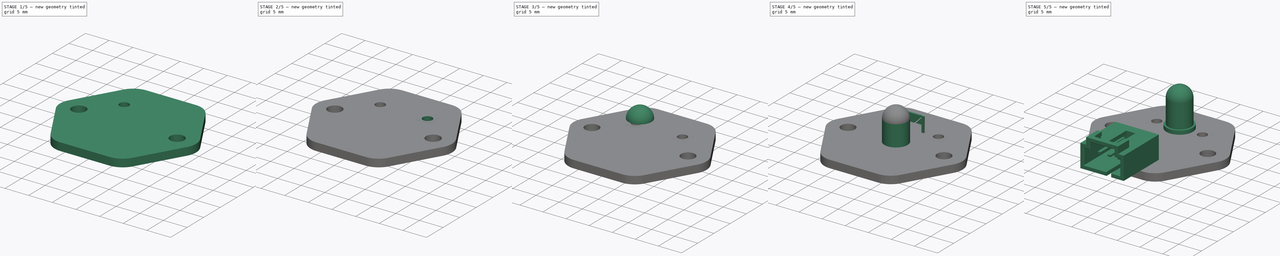
[diagram: build sequence overview — one tinted view per stage of 5, left to right]
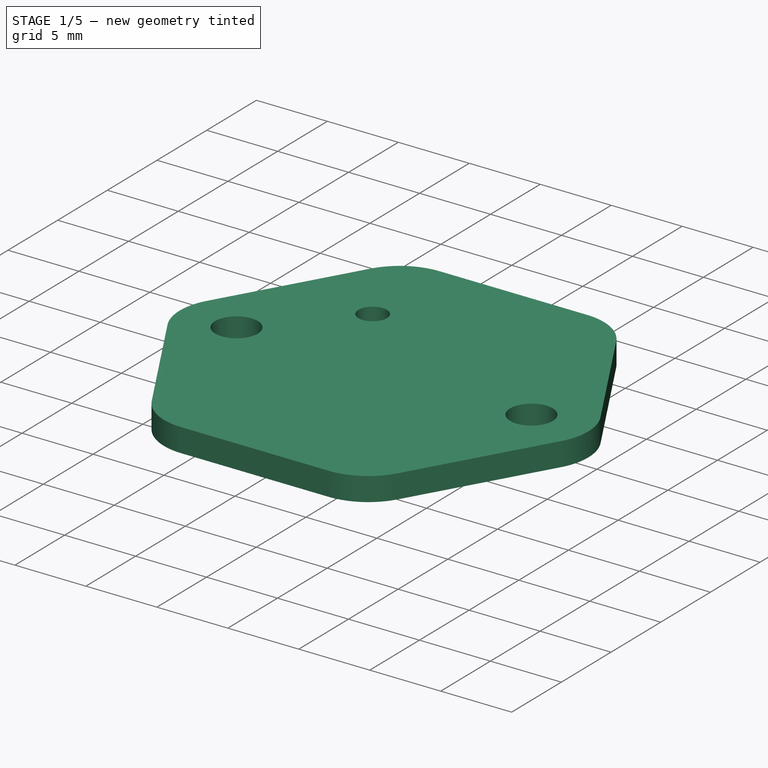
[diagram: stage 1 of 5 — iso view after this stage's code; geometry added in this stage tinted green]
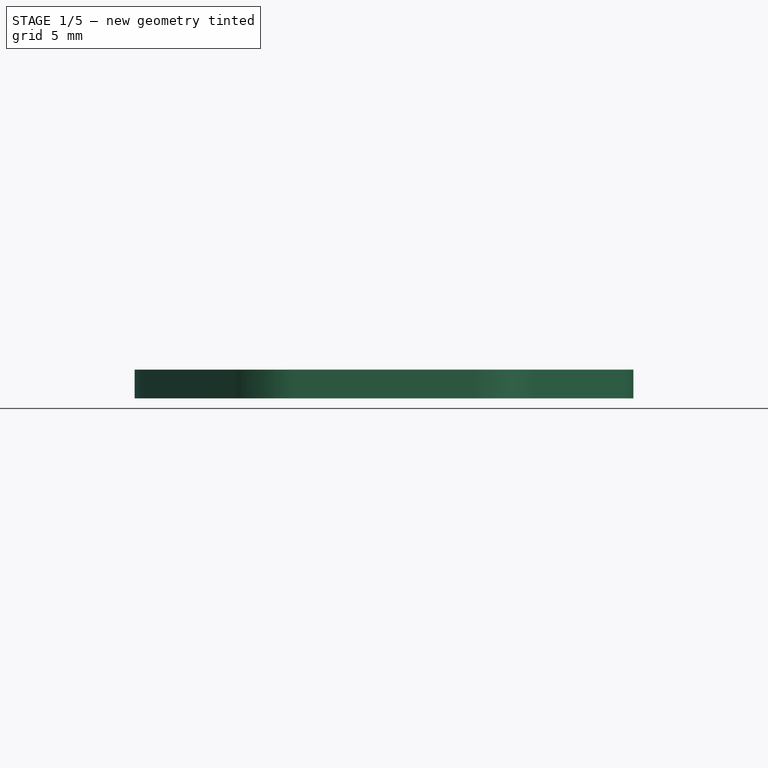
[diagram: stage 1 of 5 — front view after this stage's code; geometry added in this stage tinted green]
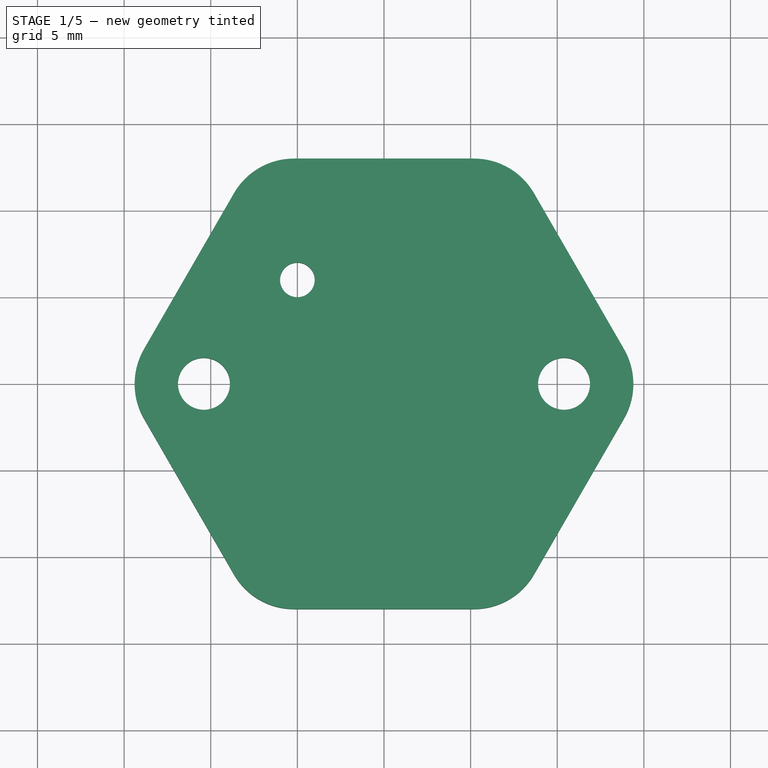
[diagram: stage 1 of 5 — top view after this stage's code; geometry added in this stage tinted green]
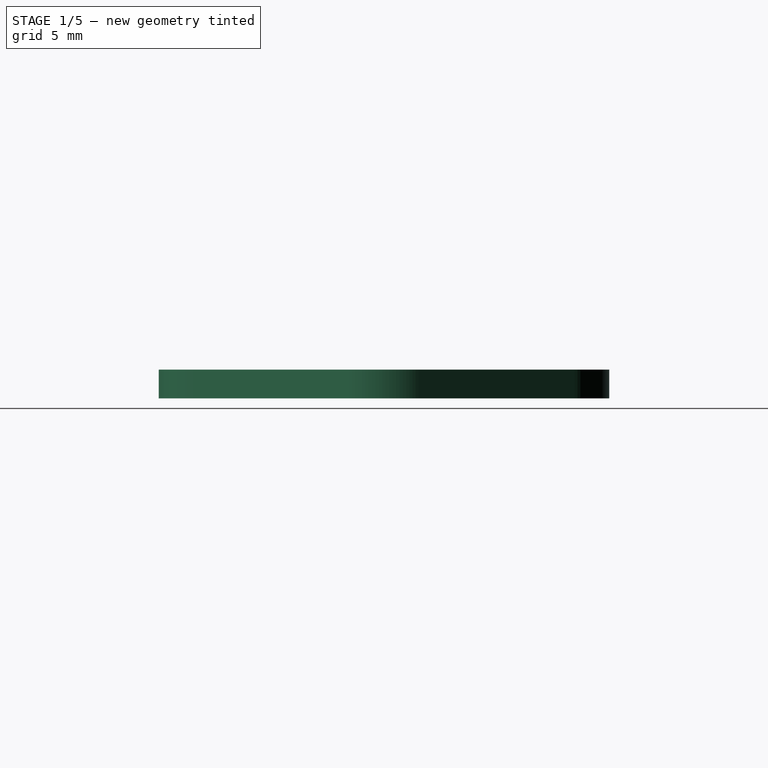
[diagram: stage 1 of 5 — right view after this stage's code; geometry added in this stage tinted green]
FCSTD DOCUMENT  (FreeCAD 0.14R3692 (Git))
Label: ZumLED
License: CC-BY 3.0
LicenseURL: http://creativecommons.org/licenses/by/3.0/
objects: PartDesign::Pad×5, Sketcher::SketchObject×4, Part::Cylinder×4, Part::Cut×3, App::DocumentObjectGroup×3, Part::MultiFuse×2, Part::Sphere×1
note: 24 computed .brp shape members not serialized (recipe doc carries the construction recipe); baked Part::Feature solids carry a one-line shape summary decoded from their .brp

FEATURE [App::DocumentObjectGroup] Grupo  label="GR_Conector"
  Group = -> [Cut002,Fusion]
FEATURE [PartDesign::Pad] Pad001  label="CuerpoBase001"
  Length = 1.66
  Length2 = 100
  Type = 0
FEATURE [Part::Cylinder] Cylinder  label="Cilindro"
  Angle = 360
  Height = 10
  Placement = pos=(-5,6,-2) rot=(0,0,1;0rad)
  Radius = 1
FEATURE [Part::Cut] Cut
  Base = -> Pad001
  Tool = -> Cylinder
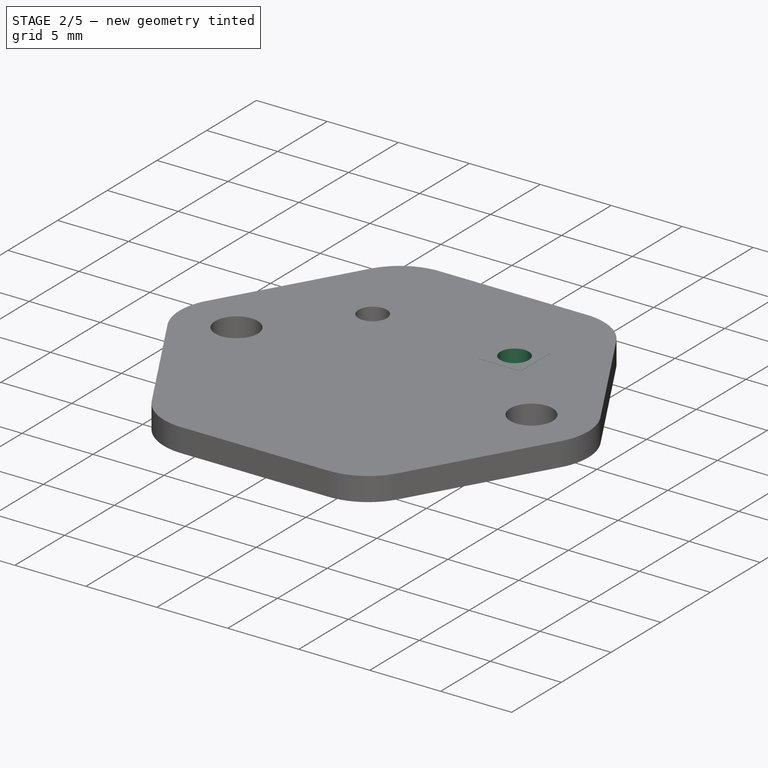
[diagram: stage 2 of 5 — iso view after this stage's code; geometry added in this stage tinted green]
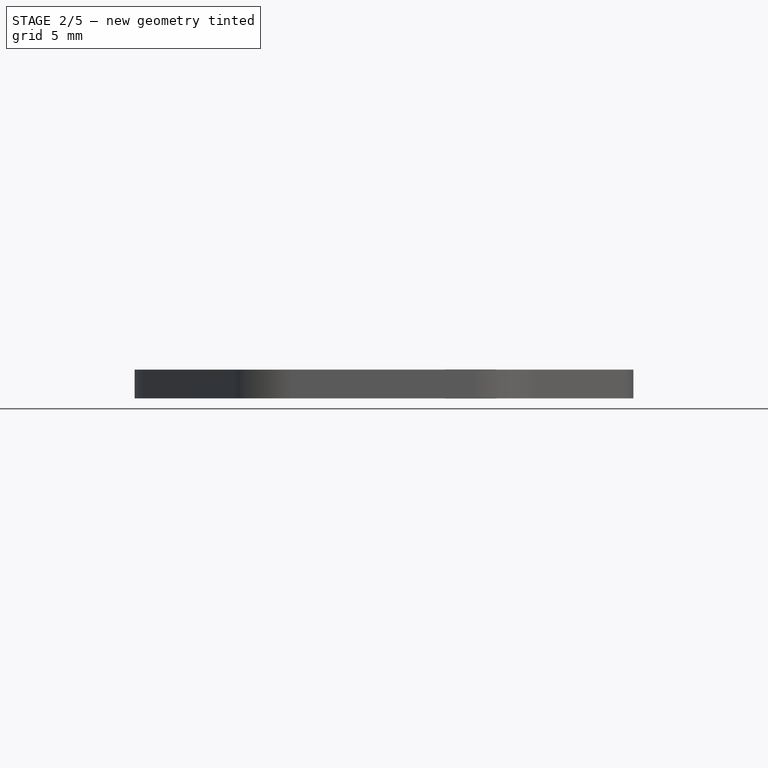
[diagram: stage 2 of 5 — front view after this stage's code; geometry added in this stage tinted green]
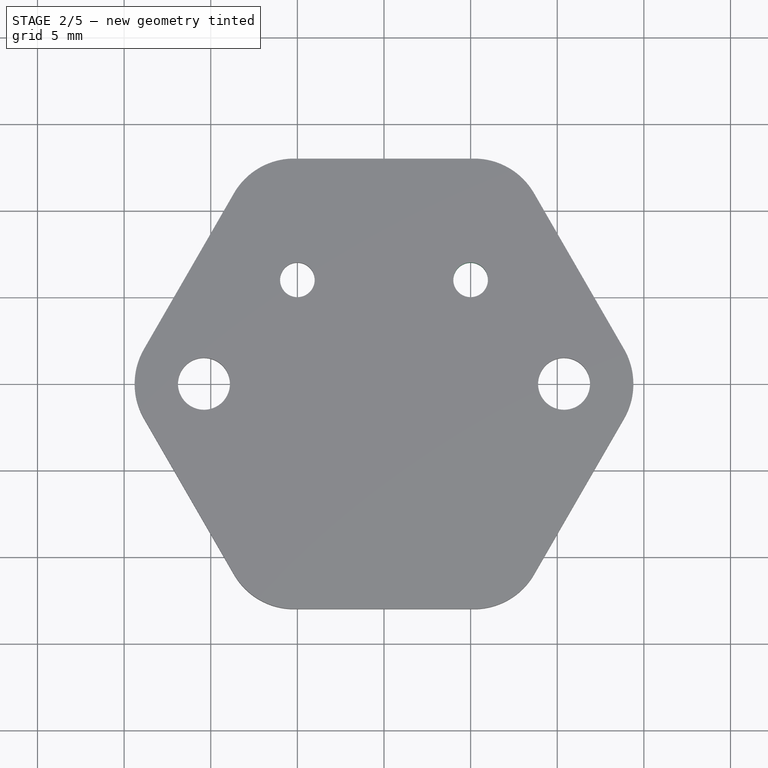
[diagram: stage 2 of 5 — top view after this stage's code; geometry added in this stage tinted green]
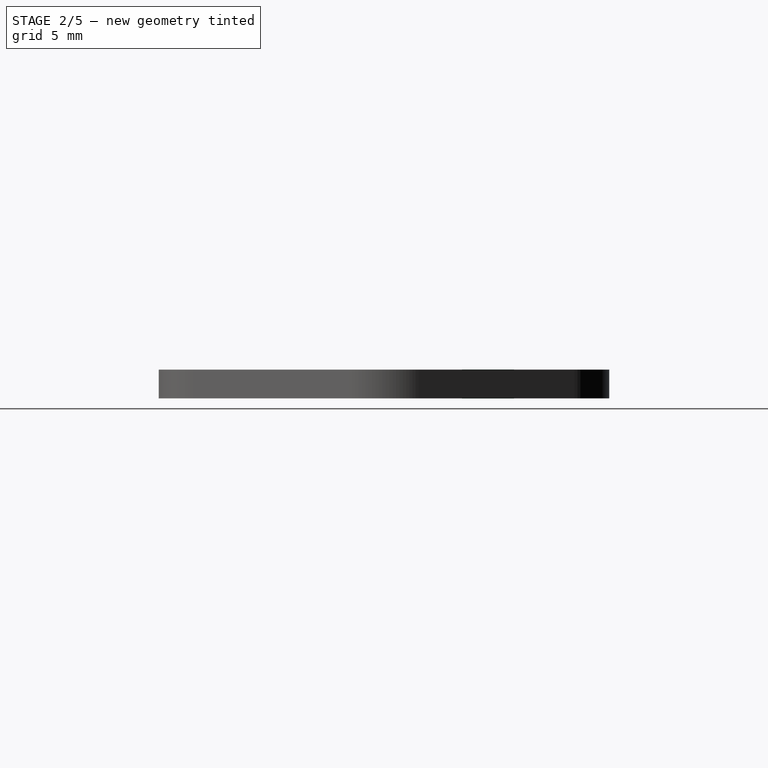
[diagram: stage 2 of 5 — right view after this stage's code; geometry added in this stage tinted green]
FEATURE [Sketcher::SketchObject] Sketch003
  Placement = pos=(5,6,-0.01) rot=(0,0,1;0rad)
  sketch-geometry (5):
    g0: LineSegment StartX=-1.4808 StartY=1.5 StartZ=0 EndX=1.4808 EndY=1.5 EndZ=0
    g1: LineSegment StartX=1.4808 StartY=1.5 StartZ=0 EndX=1.4808 EndY=-1.5 EndZ=0
    g2: LineSegment StartX=1.4808 StartY=-1.5 StartZ=0 EndX=-1.4808 EndY=-1.5 EndZ=0
    g3: LineSegment StartX=-1.4808 StartY=-1.5 StartZ=0 EndX=-1.4808 EndY=1.5 EndZ=0
    g4: Circle CenterX=0 CenterY=0 CenterZ=0 NormalX=0 NormalY=0 NormalZ=1 Radius=1
  constraints (13):
    c: Coincident(g0,g1)
    c: Coincident(g1,g2)
    c: Coincident(g2,g3)
    c: Coincident(g3,g0)
    c: Horizontal(g0)
    c: Horizontal(g2)
    c: Vertical(g1)
    c: Vertical(g3)
    c: Symmetric(g0,g1,g-1)
    c: Symmetric(g0,g2,g-1)
    c: DistanceY(g3) = 3
    c: Coincident(g4,g-1)
    c: Radius(g4) = 1
FEATURE [PartDesign::Pad] Pad
  Length = 1.68
  Length2 = 100
  Placement = pos=(5,6,-0.01) rot=(0,0,1;0rad)
  Sketch = -> Sketch003
  Type = 0
FEATURE [Part::Cylinder] Cylinder004  label="Cilindro004"
  Angle = 360
  Height = 10
  Placement = pos=(5,6,-2) rot=(0,0,1;0rad)
  Radius = 1
FEATURE [Part::Cut] Cut003
  Base = -> Cut
  Tool = -> Cylinder004
FEATURE [App::DocumentObjectGroup] Grupo002  label="GR_Placa"
  Group = -> [Pad004,Pad,Cut003]
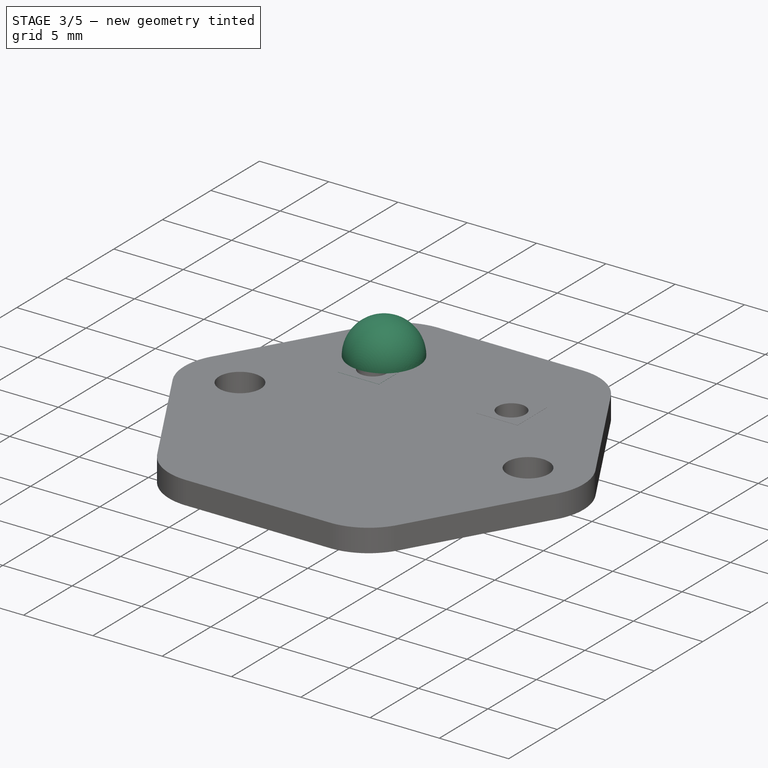
[diagram: stage 3 of 5 — iso view after this stage's code; geometry added in this stage tinted green]
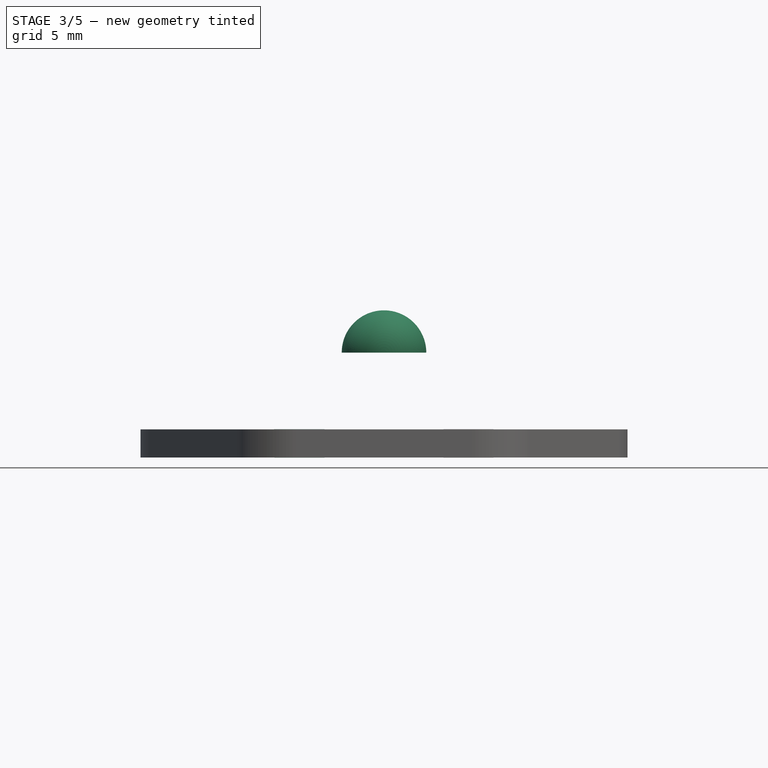
[diagram: stage 3 of 5 — front view after this stage's code; geometry added in this stage tinted green]
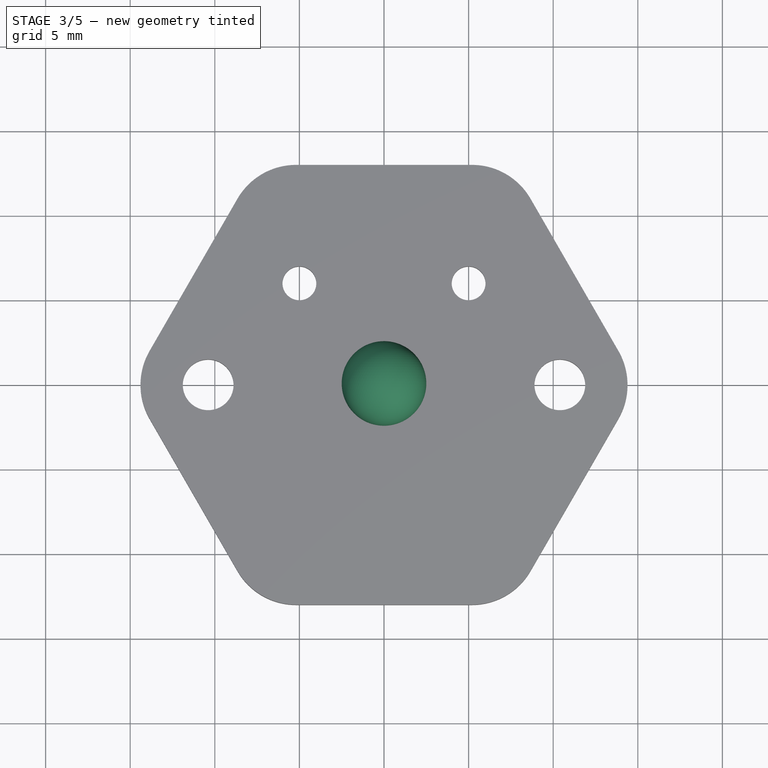
[diagram: stage 3 of 5 — top view after this stage's code; geometry added in this stage tinted green]
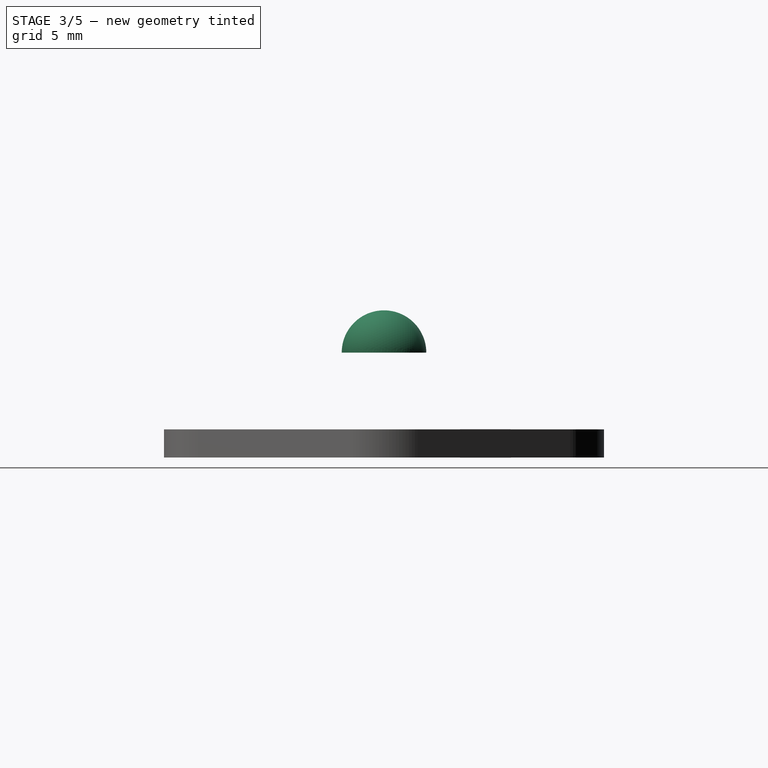
[diagram: stage 3 of 5 — right view after this stage's code; geometry added in this stage tinted green]
FEATURE [Part::Sphere] Sphere  label="Esféra"
  Angle1 = -90
  Angle2 = 90
  Angle3 = 180
  Placement = pos=(0,0,6.2) rot=(1,0,0;1.5708rad)
  Radius = 2.5
FEATURE [Part::Cylinder] Cylinder003  label="Cilindro003"
  Angle = 360
  Height = 1
  Radius = 2.9
FEATURE [App::DocumentObjectGroup] Grupo001  label="GR_LED"
  Group = -> [Fusion001,Pad002,Pad003]
FEATURE [Sketcher::SketchObject] Sketch002
  Placement = pos=(-5,6,-0.01) rot=(0,0,1;0rad)
  sketch-geometry (5):
    g0: LineSegment StartX=-1.4808 StartY=1.5 StartZ=0 EndX=1.4808 EndY=1.5 EndZ=0
    g1: LineSegment StartX=1.4808 StartY=1.5 StartZ=0 EndX=1.4808 EndY=-1.5 EndZ=0
    g2: LineSegment StartX=1.4808 StartY=-1.5 StartZ=0 EndX=-1.4808 EndY=-1.5 EndZ=0
    g3: LineSegment StartX=-1.4808 StartY=-1.5 StartZ=0 EndX=-1.4808 EndY=1.5 EndZ=0
    g4: Circle CenterX=0 CenterY=0 CenterZ=0 NormalX=0 NormalY=0 NormalZ=1 Radius=1
  constraints (13):
    c: Coincident(g0,g1)
    c: Coincident(g1,g2)
    c: Coincident(g2,g3)
    c: Coincident(g3,g0)
    c: Horizontal(g0)
    c: Horizontal(g2)
    c: Vertical(g1)
    c: Vertical(g3)
    c: Symmetric(g0,g1,g-1)
    c: Symmetric(g0,g2,g-1)
    c: DistanceY(g3) = 3
    c: Coincident(g4,g-1)
    c: Radius(g4) = 1
FEATURE [PartDesign::Pad] Pad004
  Length = 1.68
  Length2 = 100
  Placement = pos=(-5,6,-0.01) rot=(0,0,1;0rad)
  Sketch = -> Sketch002
  Type = 0
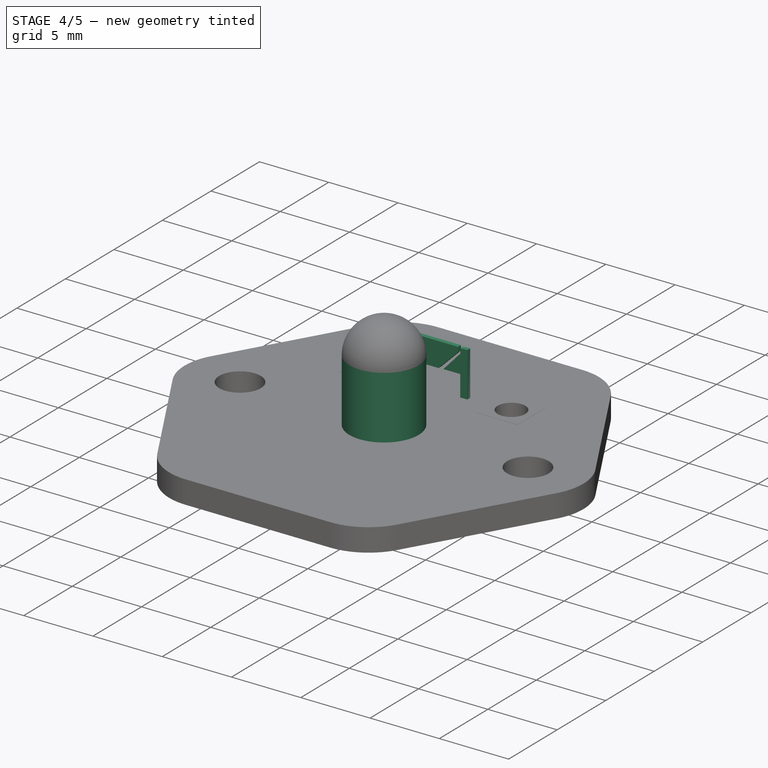
[diagram: stage 4 of 5 — iso view after this stage's code; geometry added in this stage tinted green]
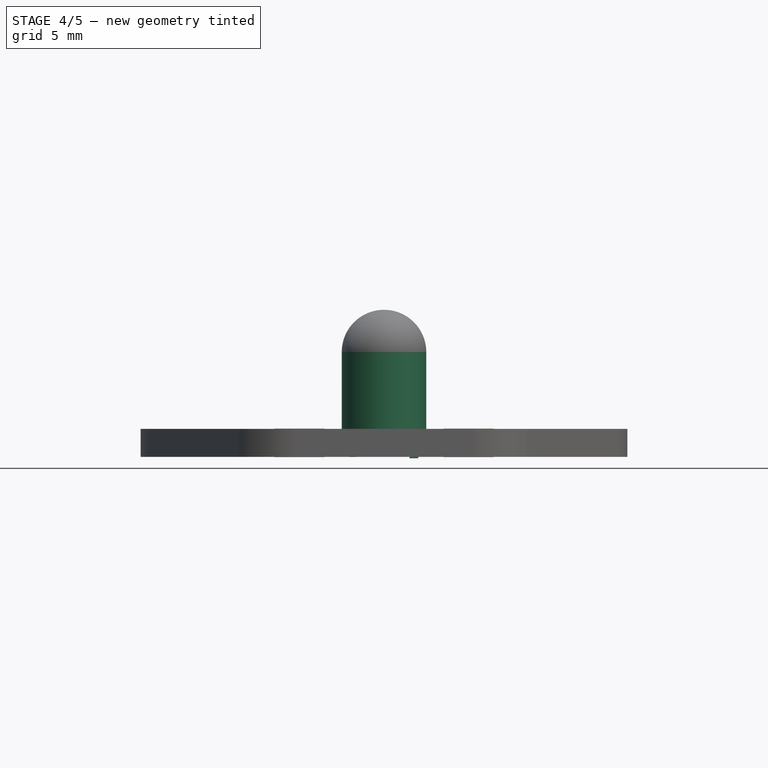
[diagram: stage 4 of 5 — front view after this stage's code; geometry added in this stage tinted green]
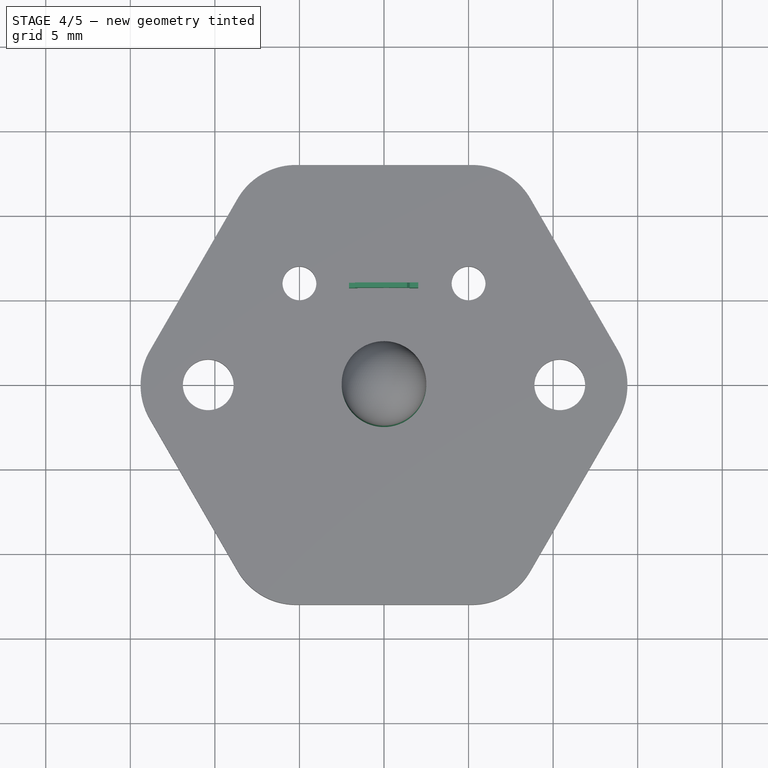
[diagram: stage 4 of 5 — top view after this stage's code; geometry added in this stage tinted green]
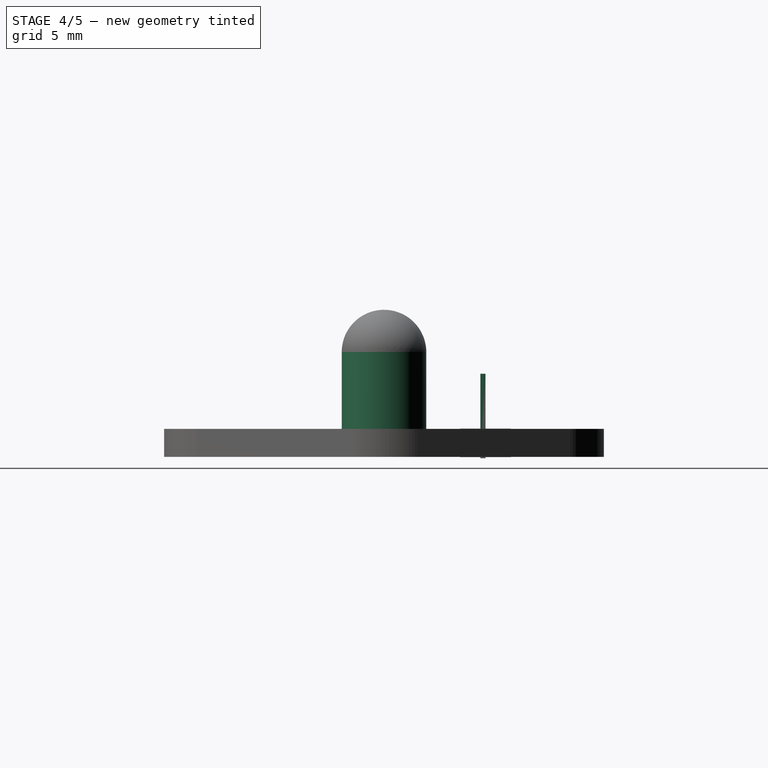
[diagram: stage 4 of 5 — right view after this stage's code; geometry added in this stage tinted green]
FEATURE [Sketcher::SketchObject] Sketch
  Placement = pos=(0,6,1.5) rot=(1,0,0;1.5708rad)
  sketch-geometry (7):
    g0: LineSegment StartX=2.0234 StartY=-1.57582 StartZ=0 EndX=2.0234 EndY=3.38927 EndZ=0
    g1: LineSegment StartX=2.0234 StartY=3.38927 StartZ=0 EndX=1.5234 EndY=3.36901 EndZ=0
    g2: LineSegment StartX=1.5234 StartY=3.36901 StartZ=0 EndX=1.5234 EndY=3.02449 EndZ=0
    g3: LineSegment StartX=1.5234 StartY=3.02449 StartZ=0 EndX=0.294592 EndY=1.68695 EndZ=0
    g4: LineSegment StartX=0.294592 StartY=1.68695 StartZ=0 EndX=1.51053 EndY=1.68695 EndZ=0
    g5: LineSegment StartX=1.51053 StartY=1.68695 StartZ=0 EndX=1.51053 EndY=-1.57582 EndZ=0
    g6: LineSegment StartX=1.51053 StartY=-1.57582 StartZ=0 EndX=2.0234 EndY=-1.57582 EndZ=0
  constraints (13):
    c: Vertical(g0)
    c: Coincident(g1,g0)
    c: DistanceX(g1,g0) = 0.5
    c: Coincident(g1,g2)
    c: Vertical(g2)
    c: Coincident(g2,g3)
    c: Coincident(g3,g4)
    c: Horizontal(g4)
    c: Coincident(g4,g5)
    c: Vertical(g5)
    c: Coincident(g5,g6)
    c: Coincident(g6,g0)
    c: Horizontal(g6)
FEATURE [PartDesign::Pad] Pad003  label="Anodo"
  Length = 0.3
  Length2 = 100
  Placement = pos=(0,6,1.5) rot=(1,0,0;1.5708rad)
  Sketch = -> Sketch
  Type = 0
FEATURE [Part::Cylinder] Cylinder002  label="Cilindro002"
  Angle = 360
  Height = 6.2
  Radius = 2.5
FEATURE [Sketcher::SketchObject] Sketch001
  Placement = pos=(0,6,1.5) rot=(1,0,0;1.5708rad)
  sketch-geometry (9):
    g0: LineSegment StartX=-2.06901 StartY=-1.50757 StartZ=0 EndX=-2.06901 EndY=2.25482 EndZ=0
    g1: LineSegment StartX=-2.06901 StartY=2.25482 StartZ=0 EndX=-1.71216 EndY=2.25482 EndZ=0
    g2: LineSegment StartX=-1.71216 StartY=2.25482 StartZ=0 EndX=-1.71216 EndY=3.41819 EndZ=0
    g3: LineSegment StartX=-1.71216 StartY=3.41819 StartZ=0 EndX=1.35716 EndY=3.41819 EndZ=0
    g4: LineSegment StartX=1.35716 StartY=3.41819 StartZ=0 EndX=1.35716 EndY=3.07166 EndZ=0
    g5: LineSegment StartX=1.35716 StartY=3.07166 StartZ=0 EndX=-0.05374 EndY=1.66076 EndZ=0
    g6: LineSegment StartX=-0.05374 StartY=1.66076 StartZ=0 EndX=-1.56901 EndY=1.66076 EndZ=0
    g7: LineSegment StartX=-1.56901 StartY=1.66076 StartZ=0 EndX=-1.56901 EndY=-1.5 EndZ=0
    g8: LineSegment StartX=-1.56901 StartY=-1.5 StartZ=0 EndX=-2.06901 EndY=-1.50757 EndZ=0
  constraints (18):
    c: Vertical(g0)
    c: Coincident(g0,g1)
    c: Horizontal(g1)
    c: Coincident(g1,g2)
    c: Vertical(g2)
    c: Coincident(g2,g3)
    c: Horizontal(g3)
    c: Coincident(g3,g4)
    c: Vertical(g4)
    c: Coincident(g4,g5)
    c: Coincident(g5,g6)
    c: Horizontal(g6)
    c: Coincident(g6,g7)
    c: Vertical(g7)
    c: Coincident(g7,g8)
    c: Coincident(g8,g0)
    c: DistanceY(g-1,g7) = -1.5
    c: DistanceX(g0,g7) = 0.5
FEATURE [PartDesign::Pad] Pad002  label="Catodo"
  Length = 0.3
  Length2 = 100
  Placement = pos=(0,6,1.5) rot=(1,0,0;1.5708rad)
  Sketch = -> Sketch001
  Type = 0
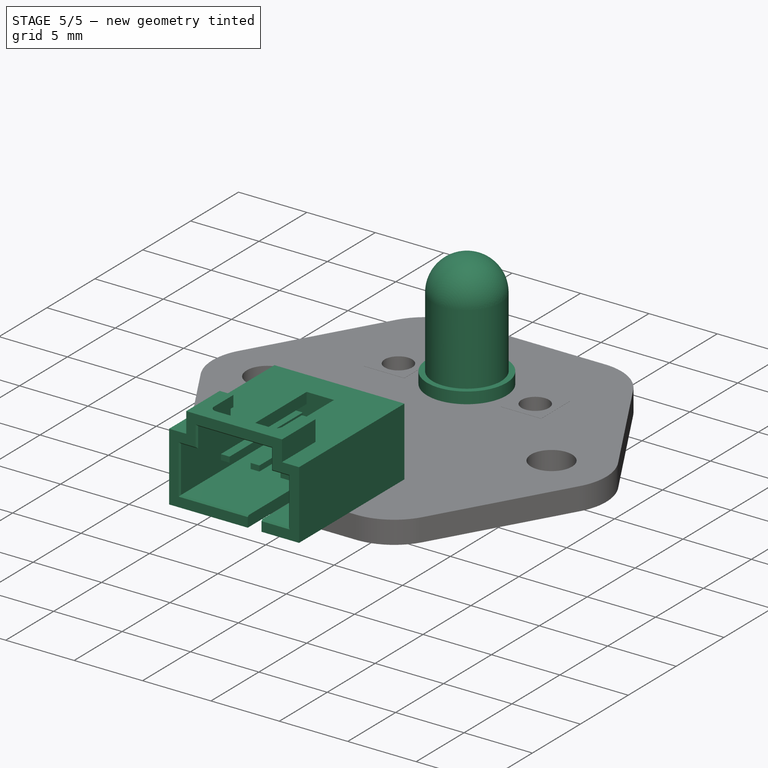
[diagram: stage 5 of 5 — iso view after this stage's code; geometry added in this stage tinted green]
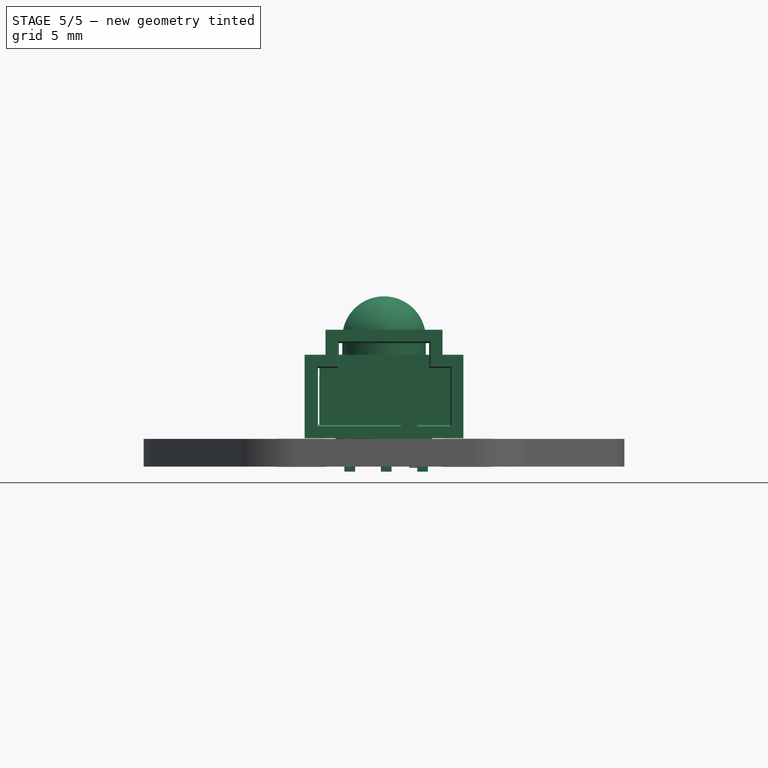
[diagram: stage 5 of 5 — front view after this stage's code; geometry added in this stage tinted green]
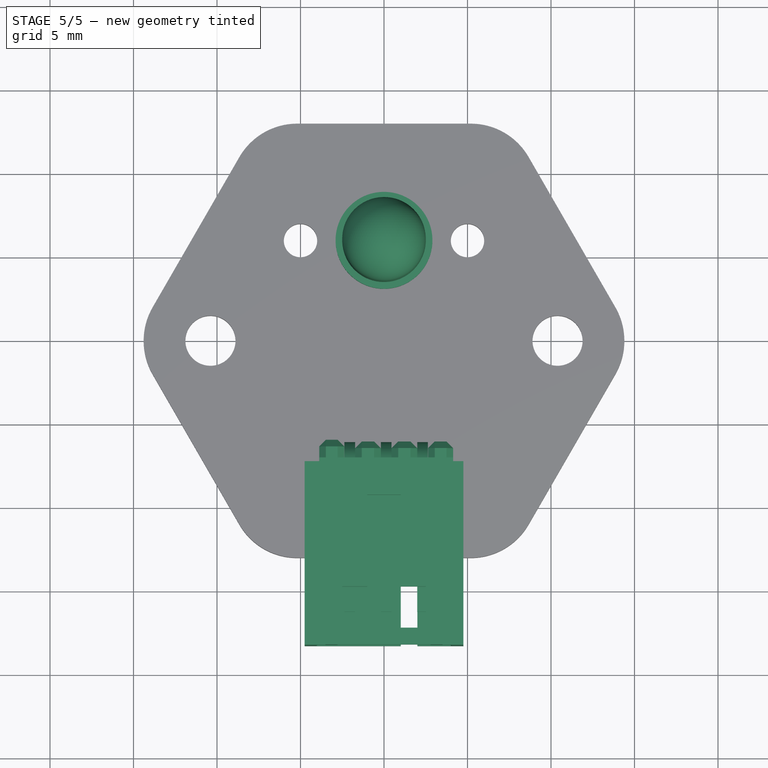
[diagram: stage 5 of 5 — top view after this stage's code; geometry added in this stage tinted green]
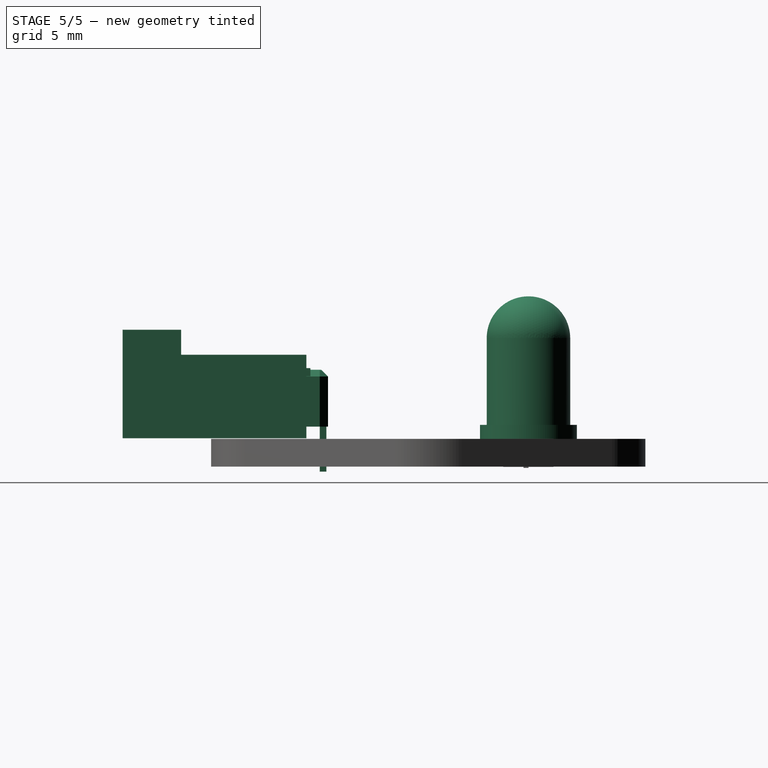
[diagram: stage 5 of 5 — right view after this stage's code; geometry added in this stage tinted green]
FEATURE [Part::Cut] Cut002  label="AlojaConectores"
  Placement = pos=(0,0.7,0.7) rot=(0,0,1;1.5708rad)
FEATURE [Part::MultiFuse] Fusion  label="Conectores"
  Placement = pos=(0,0.7,0.7) rot=(0,0,1;1.5708rad)
FEATURE [Part::MultiFuse] Fusion001  label="Funda"
  Placement = pos=(0,6,1.5) rot=(0,0,1;0rad)
  Shapes = -> [Cylinder002,Cylinder003,Sphere]
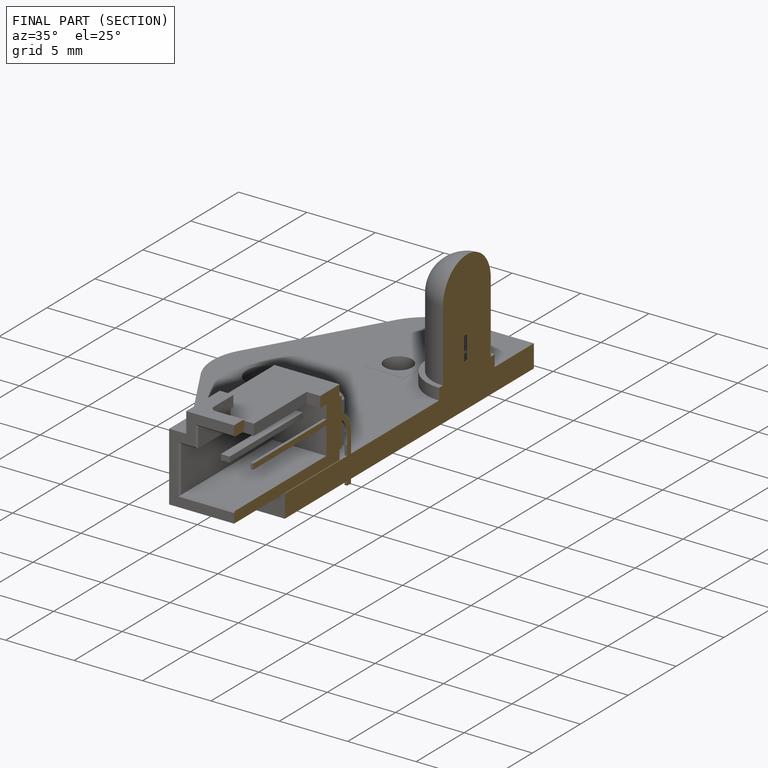
[diagram: finished part — half-section view (interior)]
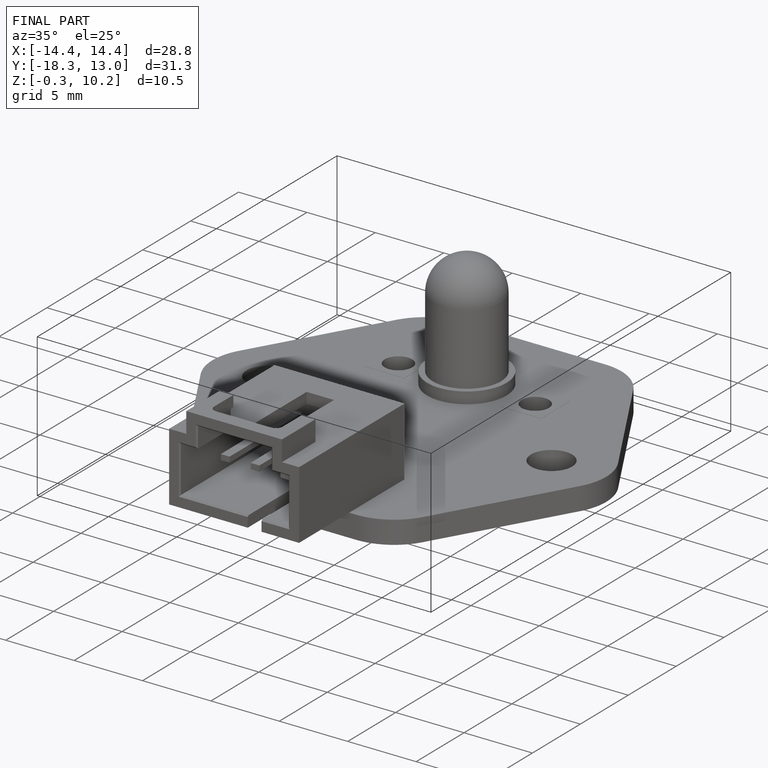
[diagram: finished part — iso view with bounding-box wireframe]
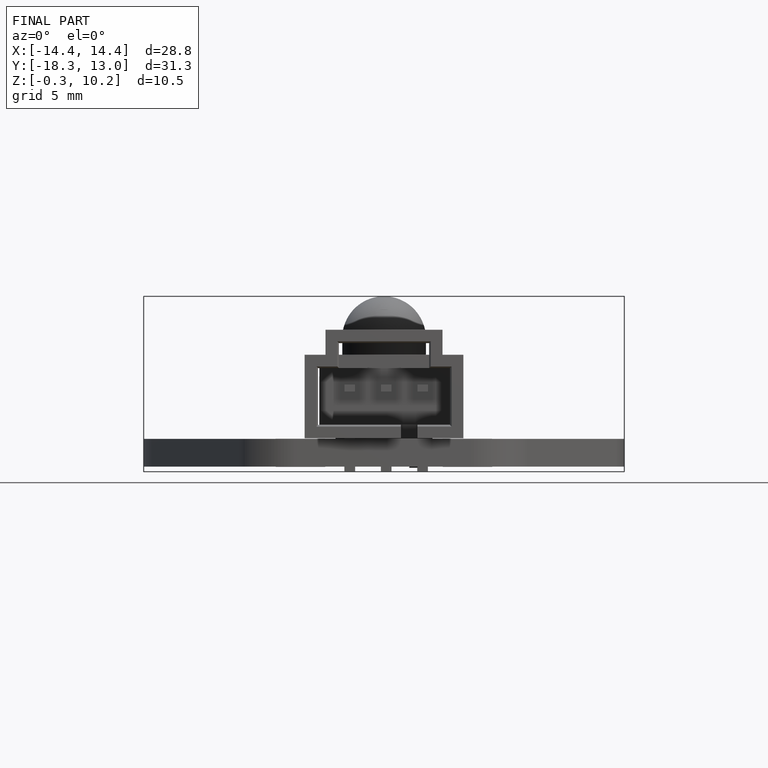
[diagram: finished part — front view with bounding-box wireframe]
